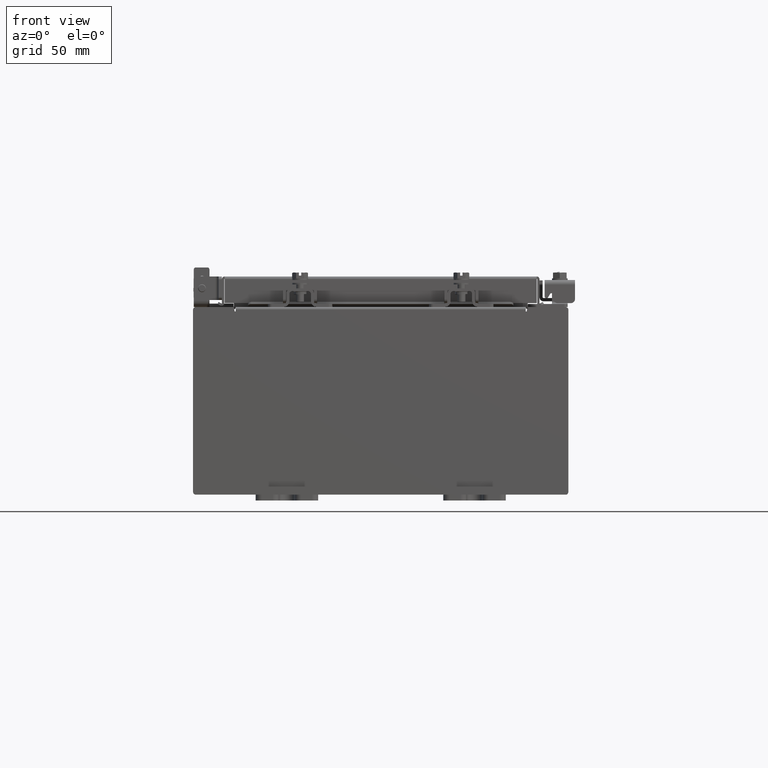
[diagram: clean part render]
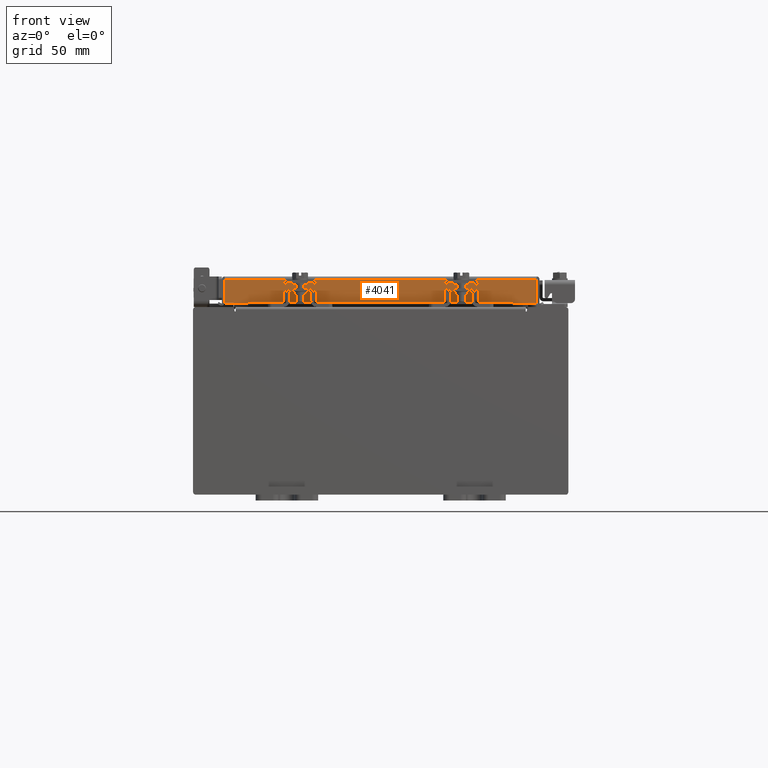
[diagram: same view with one face highlighted and labeled with its STEP entity id]
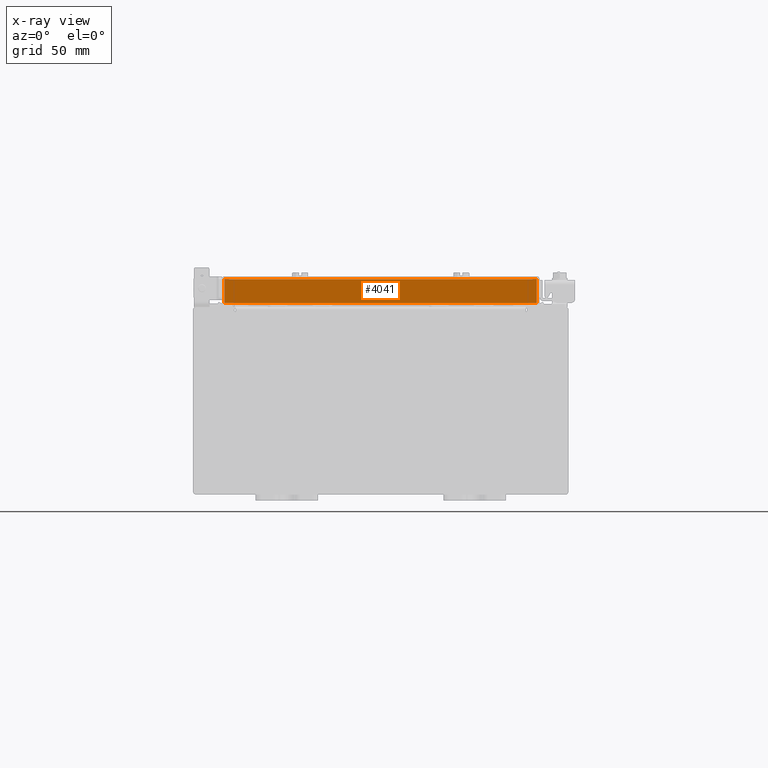
[diagram: x-ray of the same camera — body ghosted, the highlighted face saturated]
A machine part, front view. The second image highlights one B-rep face of the part: STEP entity #4041.
The next image is the same camera in x-ray: the body ghosted, the highlighted face saturated — about 0% of this face is hidden behind the body in this view.
In plain terms, the highlighted planar face has unit normal (-0, 1, -0).
Its self-contained STEP definition (entity closure, byte-faithful):
#42 = CARTESIAN_POINT ( 'NONE',  ( -4.989157864376269700, -7.094000000000000300, 2.076204475184840000E-014 ) ) ;
#234 = DIRECTION ( 'NONE',  ( -1.000000000000000000, -4.379057701015054300E-047, 1.210448599004449200E-016 ) ) ;
#274 = DIRECTION ( 'NONE',  ( 0.0000000000000000000, 2.818880942772360100E-015, 1.000000000000000000 ) ) ;
#303 = DIRECTION ( 'NONE',  ( -3.412110487939144300E-031, 1.000000000000000000, -2.818880942772360100E-015 ) ) ;
#604 = CARTESIAN_POINT ( 'NONE',  ( 4.989157864376268000, -7.094000000000000300, -0.07470000000000015500 ) ) ;
#645 = PLANE ( 'NONE',  #18718 ) ;
#648 = LINE ( 'NONE', #604, #8814 ) ;
#670 = CARTESIAN_POINT ( 'NONE',  ( 0.0000000000000000000, -7.094000000000000300, 2.076204475184840000E-014 ) ) ;
#1415 = DIRECTION ( 'NONE',  ( 1.000000000000000000, 3.412110487939144700E-031, -9.300620212429628900E-046 ) ) ;
#1829 = VECTOR ( 'NONE', #15082, 39.37007874015748100 ) ;
#2319 = EDGE_CURVE ( 'NONE', #16426, #5501, #17456, .T. ) ;
#2382 = EDGE_CURVE ( 'NONE', #8054, #17161, #20744, .T. ) ;
#4041 = ADVANCED_FACE ( 'NONE', ( #5938 ), #645, .F. ) ;
#5253 = VECTOR ( 'NONE', #15030, 39.37007874015748100 ) ;
#5501 = VERTEX_POINT ( 'NONE', #12373 ) ;
#5938 = FACE_OUTER_BOUND ( 'NONE', #12672, .T. ) ;
#6345 = VERTEX_POINT ( 'NONE', #12821 ) ;
#7215 = CARTESIAN_POINT ( 'NONE',  ( 4.239157864376268000, -7.094000000000000300, -0.8499999999999999800 ) ) ;
#7248 = ORIENTED_EDGE ( 'NONE', *, *, #16719, .F. ) ;
#7411 = CARTESIAN_POINT ( 'NONE',  ( 5.077999999999998500, -7.094000000000002100, -0.8499999999999999800 ) ) ;
#8054 = VERTEX_POINT ( 'NONE', #7215 ) ;
#8278 = ORIENTED_EDGE ( 'NONE', *, *, #2319, .T. ) ;
#8691 = EDGE_CURVE ( 'NONE', #17161, #5501, #19889, .T. ) ;
#8805 = LINE ( 'NONE', #14275, #16731 ) ;
#8814 = VECTOR ( 'NONE', #11908, 39.37007874015748100 ) ;
#8902 = CARTESIAN_POINT ( 'NONE',  ( -4.989157864376269700, -7.094000000000000300, -0.08770000000000026400 ) ) ;
#9045 = EDGE_CURVE ( 'NONE', #10253, #8054, #10919, .T. ) ;
#10253 = VERTEX_POINT ( 'NONE', #12847 ) ;
#10919 = LINE ( 'NONE', #7411, #1829 ) ;
#11908 = DIRECTION ( 'NONE',  ( -0.0000000000000000000, -2.818880942772360100E-015, -1.000000000000000000 ) ) ;
#12373 = CARTESIAN_POINT ( 'NONE',  ( -4.989157864376269700, -7.094000000000002100, -0.8499999999999988700 ) ) ;
#12672 = EDGE_LOOP ( 'NONE', ( #7248, #8278, #13968, #16963, #18756, #13522 ) ) ;
#12821 = CARTESIAN_POINT ( 'NONE',  ( 4.989157864376268000, -7.094000000000000300, -0.08770000000000026400 ) ) ;
#12847 = CARTESIAN_POINT ( 'NONE',  ( 4.989157864376268000, -7.094000000000002100, -0.8499999999999999800 ) ) ;
#13522 = ORIENTED_EDGE ( 'NONE', *, *, #19940, .F. ) ;
#13715 = DIRECTION ( 'NONE',  ( -1.000000000000000000, 0.0000000000000000000, 0.0000000000000000000 ) ) ;
#13968 = ORIENTED_EDGE ( 'NONE', *, *, #8691, .F. ) ;
#14275 = CARTESIAN_POINT ( 'NONE',  ( 5.077999999999998500, -7.094000000000000300, -0.08770000000000026400 ) ) ;
#15030 = DIRECTION ( 'NONE',  ( 0.0000000000000000000, -2.818880942772360100E-015, -1.000000000000000000 ) ) ;
#15082 = DIRECTION ( 'NONE',  ( -1.000000000000000000, -4.379057701015054300E-047, 1.210448599004449200E-016 ) ) ;
#16101 = VECTOR ( 'NONE', #234, 39.37007874015748100 ) ;
#16278 = CARTESIAN_POINT ( 'NONE',  ( 5.077999999999998500, -7.094000000000002100, -0.8499999999999999800 ) ) ;
#16426 = VERTEX_POINT ( 'NONE', #8902 ) ;
#16455 = VECTOR ( 'NONE', #13715, 39.37007874015748100 ) ;
#16719 = EDGE_CURVE ( 'NONE', #16426, #6345, #8805, .T. ) ;
#16731 = VECTOR ( 'NONE', #1415, 39.37007874015748100 ) ;
#16963 = ORIENTED_EDGE ( 'NONE', *, *, #2382, .F. ) ;
#17161 = VERTEX_POINT ( 'NONE', #19165 ) ;
#17456 = LINE ( 'NONE', #42, #5253 ) ;
#18718 = AXIS2_PLACEMENT_3D ( 'NONE', #670, #303, #274 ) ;
#18722 = CARTESIAN_POINT ( 'NONE',  ( 4.239157864376268000, -7.094000000000000300, -0.8499999999999999800 ) ) ;
#18756 = ORIENTED_EDGE ( 'NONE', *, *, #9045, .F. ) ;
#19165 = CARTESIAN_POINT ( 'NONE',  ( -4.239157864376270600, -7.094000000000000300, -0.8499999999999999800 ) ) ;
#19889 = LINE ( 'NONE', #16278, #16101 ) ;
#19940 = EDGE_CURVE ( 'NONE', #6345, #10253, #648, .T. ) ;
#20744 = LINE ( 'NONE', #18722, #16455 ) ;